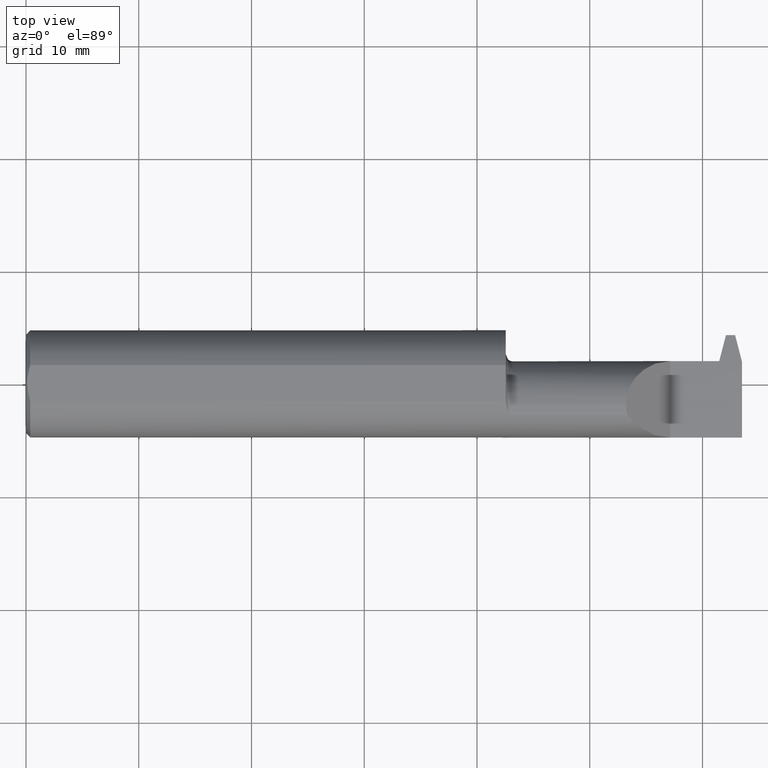
[diagram: clean part render]
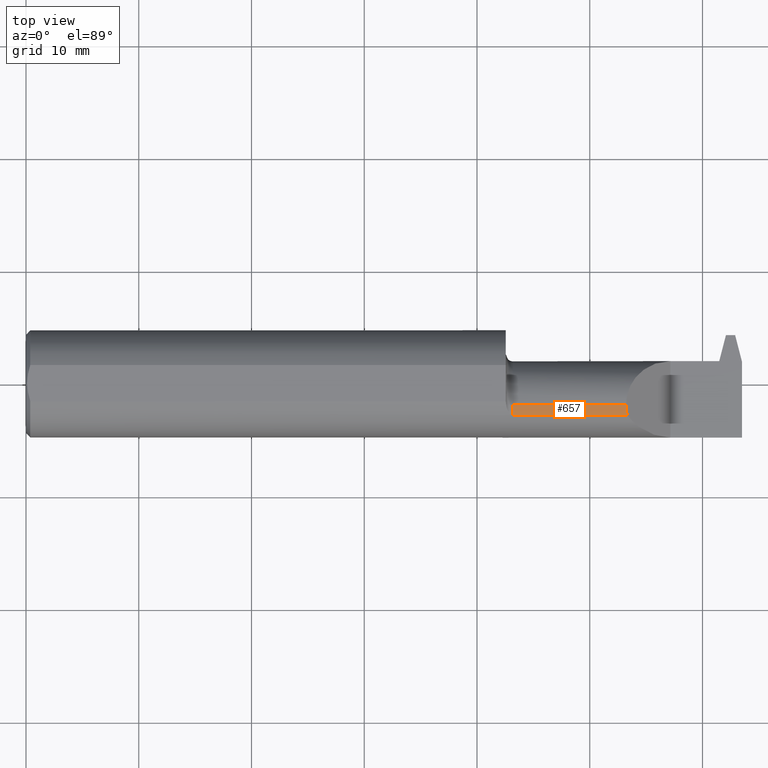
[diagram: same view with one face highlighted and labeled with its STEP entity id]
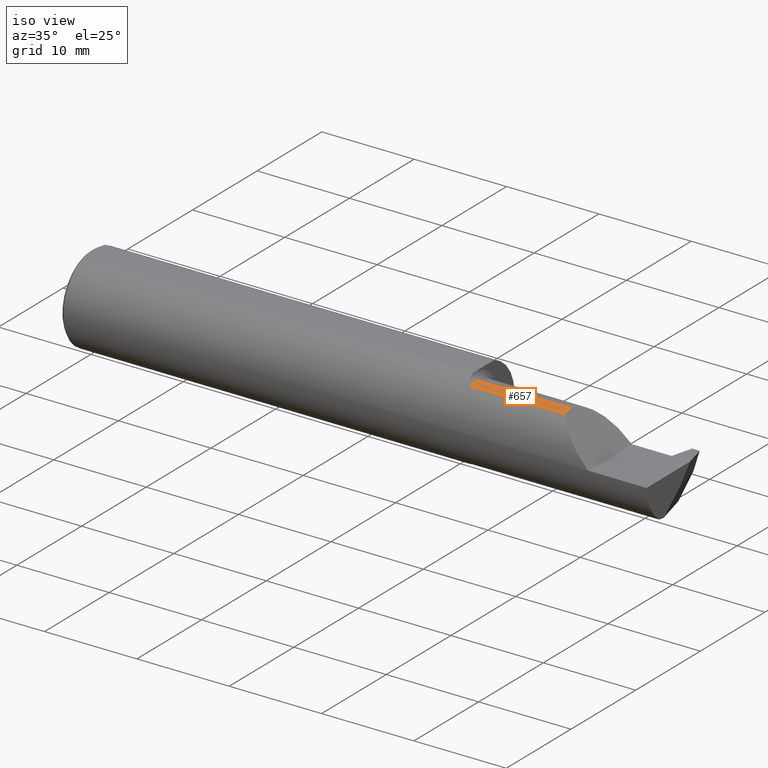
[diagram: same view with one face highlighted and labeled with its STEP entity id]
A machine part, top view. The second image highlights one B-rep face of the part: STEP entity #657.
A second angle (iso view) of the same face is appended — the face is thin or edge-on in the first view.
In plain terms, the highlighted cylindrical surface (partial cylindrical patch) has radius 3.937 mm, axis along (-1, -0, -0).
Its self-contained STEP definition (entity closure, byte-faithful):
#1 = EDGE_CURVE ( 'NONE', #776, #972, #684, .T. ) ;
#11 = EDGE_CURVE ( 'NONE', #972, #938, #158, .T. ) ;
#34 = ORIENTED_EDGE ( 'NONE', *, *, #489, .F. ) ;
#66 = CARTESIAN_POINT ( 'NONE',  ( 2.095349999999999380, -0.07535000000000005582, 0.1549999999999999989 ) ) ;
#70 = CARTESIAN_POINT ( 'NONE',  ( 2.047499999999999876, -0.1111655275381552427, 0.1508053314281814494 ) ) ;
#158 = CIRCLE ( 'NONE', #384, 0.1549999999999999989 ) ;
#167 = CARTESIAN_POINT ( 'NONE',  ( 2.096754579645089045, -0.09941754239787796432, 0.1535954203549101948 ) ) ;
#271 = EDGE_LOOP ( 'NONE', ( #34, #367, #828, #536 ) ) ;
#272 = CARTESIAN_POINT ( 'NONE',  ( 1.699999999999999956, -0.1111655275381552427, 0.1508053314281814494 ) ) ;
#310 = VECTOR ( 'NONE', #689, 39.37007874015748143 ) ;
#329 = DIRECTION ( 'NONE',  ( -1.000000000000000000, -0.000000000000000000, -0.000000000000000000 ) ) ;
#354 = VECTOR ( 'NONE', #481, 39.37007874015748143 ) ;
#367 = ORIENTED_EDGE ( 'NONE', *, *, #1, .T. ) ;
#383 = CARTESIAN_POINT ( 'NONE',  ( 2.099544668571818207, -0.1111655275381547570, 0.1508053314281816715 ) ) ;
#384 = AXIS2_PLACEMENT_3D ( 'NONE', #757, #397, #916 ) ;
#397 = DIRECTION ( 'NONE',  ( 1.000000000000000000, 0.000000000000000000, 0.000000000000000000 ) ) ;
#419 =( BOUNDED_CURVE ( )  B_SPLINE_CURVE ( 3, ( #66, #922, #167, #460 ),
 .UNSPECIFIED., .F., .T. ) 
 B_SPLINE_CURVE_WITH_KNOTS ( ( 4, 4 ),
 ( 0.000000000000000000, 0.2331751639699329859 ),
 .UNSPECIFIED. ) 
 CURVE ( )  GEOMETRIC_REPRESENTATION_ITEM ( )  RATIONAL_B_SPLINE_CURVE ( ( 1.000000000000000000, 0.9954742418208948340, 0.9954742418208948340, 1.000000000000000000 ) ) 
 REPRESENTATION_ITEM ( '' )  );
#456 = LINE ( 'NONE', #70, #310 ) ;
#460 = CARTESIAN_POINT ( 'NONE',  ( 2.099544668571818207, -0.1111655275381547570, 0.1508053314281816715 ) ) ;
#461 = CARTESIAN_POINT ( 'NONE',  ( 1.675000000000000044, -0.07535000000000005582, 0.1549999999999999989 ) ) ;
#462 = CARTESIAN_POINT ( 'NONE',  ( 2.095349999999999380, -0.07535000000000005582, 0.1549999999999999989 ) ) ;
#481 = DIRECTION ( 'NONE',  ( -1.000000000000000000, -0.000000000000000000, -0.000000000000000000 ) ) ;
#489 = EDGE_CURVE ( 'NONE', #776, #740, #419, .T. ) ;
#513 = AXIS2_PLACEMENT_3D ( 'NONE', #936, #329, #628 ) ;
#532 = EDGE_CURVE ( 'NONE', #938, #740, #456, .T. ) ;
#536 = ORIENTED_EDGE ( 'NONE', *, *, #532, .T. ) ;
#628 = DIRECTION ( 'NONE',  ( 0.000000000000000000, 0.000000000000000000, 1.000000000000000000 ) ) ;
#644 = FACE_OUTER_BOUND ( 'NONE', #271, .T. ) ;
#657 = ADVANCED_FACE ( 'NONE', ( #644 ), #783, .T. ) ;
#684 = LINE ( 'NONE', #461, #354 ) ;
#689 = DIRECTION ( 'NONE',  ( 1.000000000000000000, 0.000000000000000000, 0.000000000000000000 ) ) ;
#740 = VERTEX_POINT ( 'NONE', #383 ) ;
#757 = CARTESIAN_POINT ( 'NONE',  ( 1.699999999999999956, -0.07535000000000005582, 0.000000000000000000 ) ) ;
#776 = VERTEX_POINT ( 'NONE', #462 ) ;
#783 = CYLINDRICAL_SURFACE ( 'NONE', #513, 0.1549999999999999989 ) ;
#828 = ORIENTED_EDGE ( 'NONE', *, *, #11, .T. ) ;
#916 = DIRECTION ( 'NONE',  ( 0.000000000000000000, 0.000000000000000000, -1.000000000000000000 ) ) ;
#922 = CARTESIAN_POINT ( 'NONE',  ( 2.095349999999999380, -0.08742475677085130570, 0.1550000000000000266 ) ) ;
#936 = CARTESIAN_POINT ( 'NONE',  ( 1.675000000000000044, -0.07535000000000005582, 0.000000000000000000 ) ) ;
#938 = VERTEX_POINT ( 'NONE', #272 ) ;
#970 = CARTESIAN_POINT ( 'NONE',  ( 1.699999999999999956, -0.07535000000000005582, 0.1549999999999999989 ) ) ;
#972 = VERTEX_POINT ( 'NONE', #970 ) ;